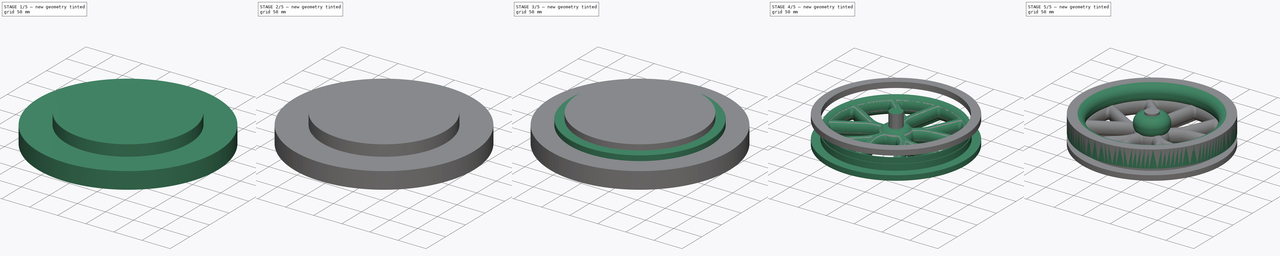
[diagram: build sequence overview — one tinted view per stage of 5, left to right]
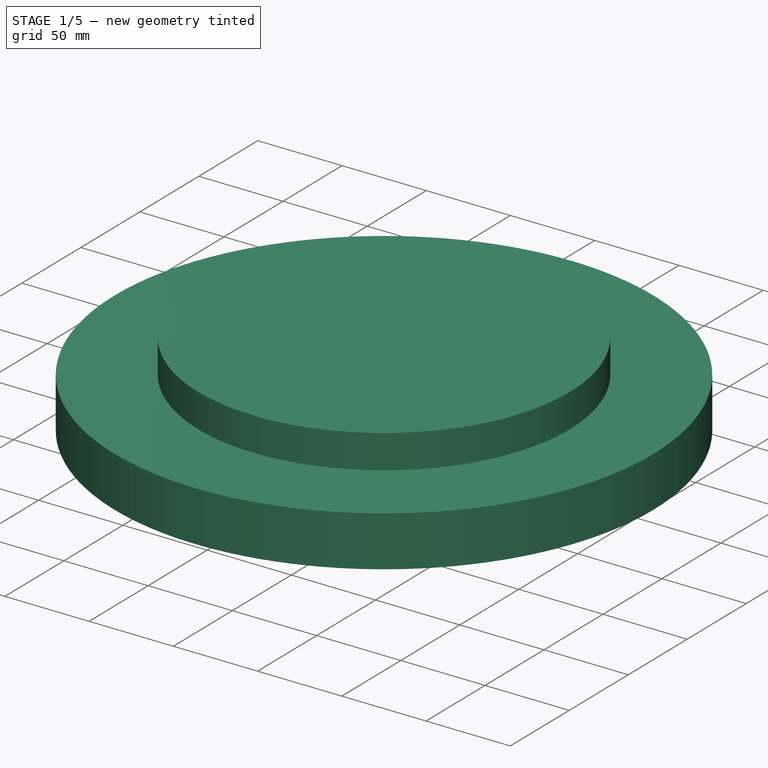
[diagram: stage 1 of 5 — iso view after this stage's code; geometry added in this stage tinted green]
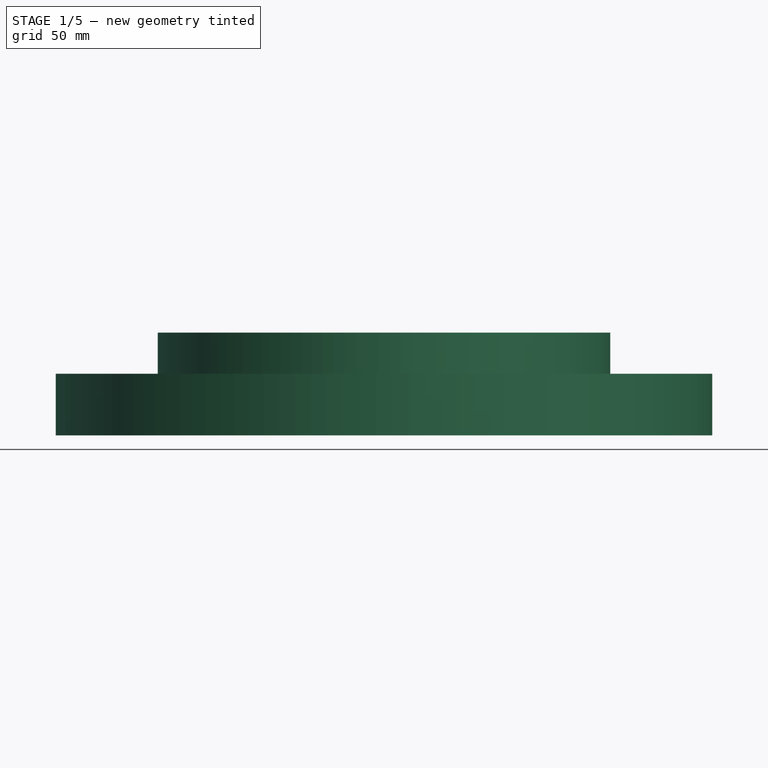
[diagram: stage 1 of 5 — front view after this stage's code; geometry added in this stage tinted green]
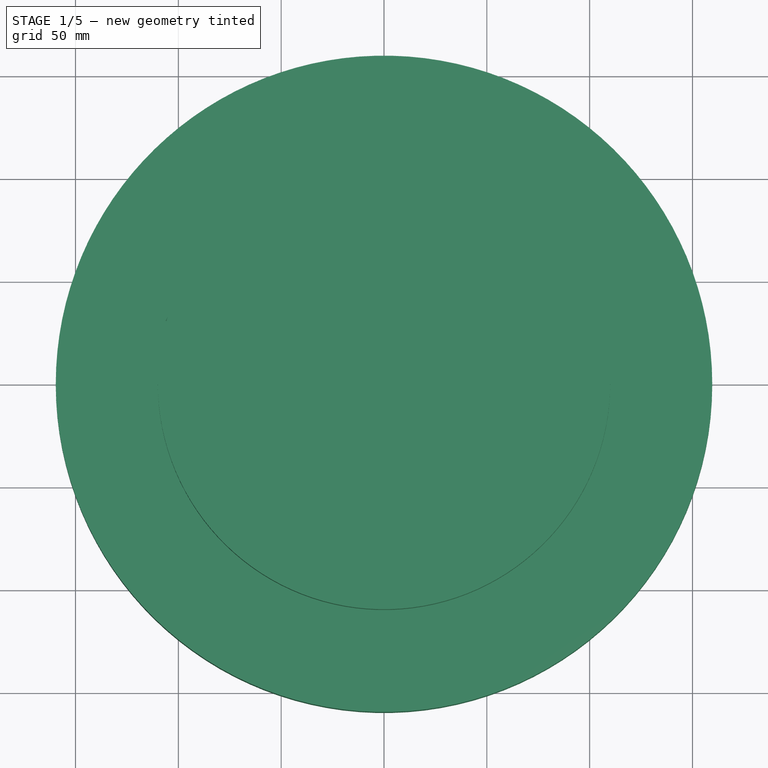
[diagram: stage 1 of 5 — top view after this stage's code; geometry added in this stage tinted green]
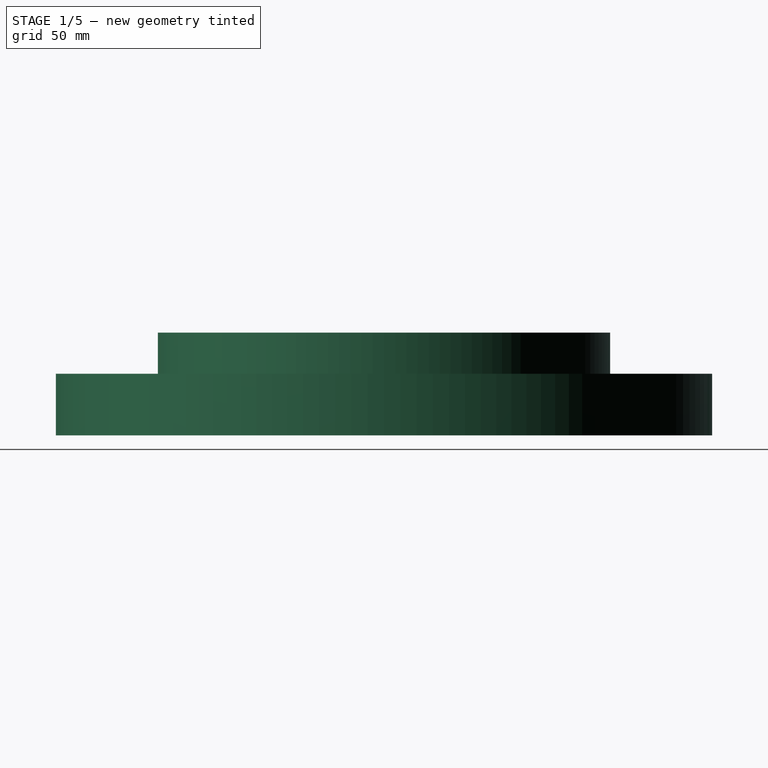
[diagram: stage 1 of 5 — right view after this stage's code; geometry added in this stage tinted green]
FCSTD DOCUMENT  (FreeCAD 0.20R27319 (Git))
Label: Vorderrad
License: All rights reserved
LicenseURL: http://en.wikipedia.org/wiki/All_rights_reserved
objects: Sketcher::SketchObject×9, PartDesign::Body×6, Part::FeaturePython×4, Part::Fillet×3, PartDesign::Pad×3, Part::Cylinder×2, PartDesign::AdditivePipe×2, PartDesign::PolarPattern×2, PartDesign::Revolution×2, Part::MultiFuse×2, Part::Cut×1, App::DocumentObjectGroup×1
note: 43 computed .brp shape members not serialized (recipe doc carries the construction recipe); baked Part::Feature solids carry a one-line shape summary decoded from their .brp

FEATURE [PartDesign::Body] Body002  label="Felge16"
  Group = -> [Sketch002,Revolution]
  Origin = -> Origin002
  Placement = pos=(0,0,15.5) rot=(0,0,1;0rad)
  Tip = -> Revolution
FEATURE [Sketcher::SketchObject] Sketch004  label="leg-profile-copy"
  AttachmentOffset = pos=(0.5,0,-10.1) rot=(0,0,1;0rad)
  FullyConstrained = true
  MapMode = 5
  Placement = pos=(-10.1,0.5,-2.4e-15) rot=(0.57735,0.57735,0.57735;2.0944rad)
  Support = -> [YZ_Plane003]
  expr: Constraints[15] = Sketch.Constraints[15]
  expr: Constraints[17] = Sketch.Constraints[17]
  expr: Constraints[5] = Sketch.Constraints[5]
  expr: Constraints[7] = Sketch.Constraints[7]
  expr: Constraints[8] = Sketch.Constraints[8]
  sketch-geometry (8):
    g0: ArcOfEllipse CenterX=0 CenterY=15.5 CenterZ=0 NormalX=0 NormalY=0 NormalZ=1 MajorRadius=11 MinorRadius=8 AngleXU=1.5708 StartAngle=3.45942 EndAngle=9.10695
    g1: LineSegment StartX=0 StartY=26.5 StartZ=0 EndX=0 EndY=4.5 EndZ=0
    g2: LineSegment StartX=-8 StartY=15.5 StartZ=0 EndX=8 EndY=15.5 EndZ=0
    g3: GeomPoint X=8e-16 Y=23.0498 Z=0
    g4: GeomPoint X=0 Y=7.95017 Z=0
    g5: LineSegment StartX=-2.5 StartY=5.0509 StartZ=0 EndX=-0.75 EndY=0 EndZ=0
    g6: LineSegment StartX=-0.75 StartY=0 StartZ=0 EndX=0.75 EndY=0 EndZ=0
    g7: LineSegment StartX=0.75 StartY=0 StartZ=0 EndX=2.5 EndY=5.0509 EndZ=0
  constraints (15):
    c: InternalAlignment(g1-g4 -> g0) x4
    c: PointOnObject(g0,g-2)
    c: DistanceY(g0) = 15.5
    c: PointOnObject(g1,g-2)
    c: DistanceY(g1,g1) = 22
    c: DistanceX(g2,g2) = 16
    c: PointOnObject(g5,g-1)
    c: Coincident(g5,g6)
    c: Coincident(g6,g7)
    c: Symmetric(g5,g7,g-2)
    c: Coincident(g0,g7)
    c: PointOnObject(g0,g5)
    c: DistanceX(g0,g0) = 5
    c: Symmetric(g5,g6,g-2)
    c: DistanceX(g5,g6) = 1.5
FEATURE [Sketcher::SketchObject] Sketch005  label="leg-path-right"
  FullyConstrained = true
  MapMode = 5
  Support = -> [XY_Plane003]
  expr: Constraints[10] = Sketch001.Constraints[13] + 0.1mm
  expr: Constraints[16] = Sketch001.Constraints[3]
  expr: Constraints[3] = Sketch001.Constraints[6]
  expr: Constraints[4] = Sketch001.Constraints[7]
  expr: Constraints[6] = Sketch001.Constraints[9]
  expr: Constraints[7] = -Sketch001.Constraints[10]
  expr: Constraints[8] = -Sketch001.Constraints[11]
  sketch-geometry (6):
    g0: LineSegment StartX=-50.5845 StartY=6.4514 StartZ=0 EndX=-102.979 EndY=36.7014 EndZ=0
    g1: GeomPoint X=-41.9476 Y=1.46484 Z=0
    g2: LineSegment StartX=0 StartY=0 StartZ=0 EndX=-93.8736 EndY=31.4444 EndZ=0
    g3: LineSegment StartX=-10.0938 StartY=0.352485 StartZ=0 EndX=-31.9805 EndY=1.11678 EndZ=0
    g4: LineSegment StartX=0 StartY=0 StartZ=0 EndX=-93.8736 EndY=-31.4444 EndZ=0
    g5: ArcOfCircle CenterX=-30.5845 CenterY=41.0924 CenterZ=0 NormalX=0 NormalY=0 NormalZ=1 AngleXU=0 Radius=40 StartAngle=4.18879 EndAngle=4.67748
  constraints (17):
    c: PointOnObject(g1,g0)
    c: PointOnObject(g2,g0)
    c: Coincident(g2,g-1)
    c: Distance(g2) = 99
    c: Distance(g0) = 60.5
    c: PointOnObject(g1,g3)
    c: Distance(g2,g3) = 32
    c: Angle(g3) = 3.10669
    c: Angle(g0,g3) = -2.6529
    c: PointOnObject(g2,g3)
    c: Distance(g3,g2) = 10.1
    c: Coincident(g4,g2)
    c: Symmetric(g4,g2,g-1)
    c: Angle(g4,g2) = -0.646436
    c: Tangent(g5,g3) = 1.5708
    c: Tangent(g5,g0) = 1.5708
    c: Radius(g5) = 40
FEATURE [PartDesign::AdditivePipe] AdditivePipe001
  AuxilleryCurvelinear = true
  AuxillerySpineTangent = false
  Binormal = (0,0,0)
  Mode = 0
  Placement = pos=(0,0,0) rot=(0.57735,0.57735,0.57735;2.0944rad)
  Profile = -> Sketch004
  Spine = -> Sketch005
  SpineTangent = false
  Transformation = 0
  Transition = 0
FEATURE [Sketcher::SketchObject] Sketch006
  AttachmentOffset = pos=(0,0,21) rot=(0,0,1;0rad)
  FullyConstrained = false
  MapMode = 5
  Placement = pos=(0,0,21) rot=(0,0,1;0rad)
  Support = -> [XY_Plane004]
  sketch-geometry (1):
    g0: Circle CenterX=0 CenterY=0 CenterZ=0 NormalX=0 NormalY=0 NormalZ=1 AngleXU=0 Radius=159.603
  constraints (1):
    c: Coincident(g0,g-1)
FEATURE [PartDesign::Pad] Pad
  Direction = (0,0,1)
  Length = 30
  Length2 = 10
  Profile = -> Sketch006
  ReferenceAxis = -> Sketch006 [N_Axis]
  Reversed = true
  Type = 0
FEATURE [Sketcher::SketchObject] Sketch007
  FullyConstrained = true
  MapMode = 5
  Placement = pos=(0,0,21) rot=(0,0,1;0rad)
  Support = -> [Pad]
  sketch-geometry (1):
    g0: Circle CenterX=0 CenterY=0 CenterZ=0 NormalX=0 NormalY=0 NormalZ=1 AngleXU=0 Radius=110
  constraints (2):
    c: Coincident(g0,g-1)
    c: Diameter(g0) = 220
FEATURE [PartDesign::Pad] Pad001
  BaseFeature = -> Pad
  Direction = (0,0,1)
  Length = 20
  Length2 = 10
  Profile = -> Sketch007
  ReferenceAxis = -> Sketch007 [N_Axis]
  Type = 0
FEATURE [PartDesign::Body] Body004  label="splitter"
  Group = -> [Sketch006,Pad,Sketch007,Pad001]
  Origin = -> Origin004
  Tip = -> Pad001
FEATURE [Sketcher::SketchObject] Sketch008
  FullyConstrained = true
  MapMode = 5
  Support = -> [XY_Plane005]
  sketch-geometry (18):
    g0: LineSegment StartX=9.56958 StartY=-5.525 StartZ=0 EndX=9.56958 EndY=5.525 EndZ=0
    g1: LineSegment StartX=9.56958 StartY=5.525 StartZ=0 EndX=0 EndY=11.05 EndZ=0
    g2: LineSegment StartX=0 StartY=11.05 StartZ=0 EndX=-9.56958 EndY=5.525 EndZ=0
    g3: LineSegment StartX=-9.56958 StartY=5.525 StartZ=0 EndX=-9.56958 EndY=-5.525 EndZ=0
    g4: LineSegment StartX=-9.56958 StartY=-5.525 StartZ=0 EndX=1.8e-15 EndY=-11.05 EndZ=0
    g5: LineSegment StartX=1.8e-15 StartY=-11.05 StartZ=0 EndX=9.56958 EndY=-5.525 EndZ=0
    g6: ArcOfCircle CenterX=0 CenterY=0 CenterZ=0 NormalX=0 NormalY=0 NormalZ=1 AngleXU=0 Radius=11.05 StartAngle=1.66585 EndAngle=2.52294
    g7: ArcOfCircle CenterX=0 CenterY=11.05 CenterZ=0 NormalX=0 NormalY=0 NormalZ=1 AngleXU=0 Radius=1.05 StartAngle=6.23566 EndAngle=9.47231
    g8: ArcOfCircle CenterX=-9.56958 CenterY=5.525 CenterZ=0 NormalX=0 NormalY=0 NormalZ=1 AngleXU=0 Radius=1.05 StartAngle=0.999668 EndAngle=4.23632
    g9: ArcOfCircle CenterX=9.56958 CenterY=5.525 CenterZ=0 NormalX=0 NormalY=0 NormalZ=1 AngleXU=0 Radius=1.05 StartAngle=5.18846 EndAngle=8.42511
    g10: ArcOfCircle CenterX=9.56958 CenterY=-5.525 CenterZ=0 NormalX=0 NormalY=0 NormalZ=1 AngleXU=0 Radius=1.05 StartAngle=4.14126 EndAngle=7.37791
    g11: ArcOfCircle CenterX=1.8e-15 CenterY=-11.05 CenterZ=0 NormalX=0 NormalY=0 NormalZ=1 AngleXU=0 Radius=1.05 StartAngle=3.09406 EndAngle=6.33071
    g12: ArcOfCircle CenterX=-9.56958 CenterY=-5.525 CenterZ=0 NormalX=0 NormalY=0 NormalZ=1 AngleXU=0 Radius=1.05 StartAngle=2.04687 EndAngle=5.28352
    g13: ArcOfCircle CenterX=0 CenterY=0 CenterZ=0 NormalX=0 NormalY=0 NormalZ=1 AngleXU=0 Radius=11.05 StartAngle=0.618657 EndAngle=1.47574
    g14: ArcOfCircle CenterX=0 CenterY=0 CenterZ=0 NormalX=0 NormalY=0 NormalZ=1 AngleXU=0 Radius=11.05 StartAngle=5.85464 EndAngle=6.71173
    g15: ArcOfCircle CenterX=0 CenterY=0 CenterZ=0 NormalX=0 NormalY=0 NormalZ=1 AngleXU=0 Radius=11.05 StartAngle=4.80745 EndAngle=5.66453
    g16: ArcOfCircle CenterX=0 CenterY=0 CenterZ=0 NormalX=0 NormalY=0 NormalZ=1 AngleXU=0 Radius=11.05 StartAngle=3.76025 EndAngle=4.61733
    g17: ArcOfCircle CenterX=0 CenterY=0 CenterZ=0 NormalX=0 NormalY=0 NormalZ=1 AngleXU=0 Radius=11.05 StartAngle=2.71305 EndAngle=3.57013
  constraints (50):
    c: Coincident(g0,g1)
    c: Coincident(g1,g2)
    c: Coincident(g2,g3)
    c: Coincident(g3,g4)
    c: Coincident(g4,g5)
    c: Coincident(g5,g0)
    c: Equal(g0, g1-g5) x5
    c: PointOnObject(g5,g6)
    c: PointOnObject(g1,g-2)
    c: DistanceY(g4,g1) = 22.1
    c: Coincident(g7,g1)
    c: Coincident(g8,g2)
    c: Coincident(g10,g0)
    c: Coincident(g11,g4)
    c: Coincident(g12,g3)
    c: Coincident(g9,g0)
    c: Coincident(g6,g-1)
    c: Equal(g7,g9)
    c: Equal(g9,g10)
    c: Equal(g10,g11)
    c: Equal(g11,g12)
    c: Equal(g12,g8)
    c: Diameter(g9) = 2.1
    c: Coincident(g6,g7)
    c: Coincident(g13,g7)
    c: Equal(g6,g13)
    c: Coincident(g14,g9)
    c: Coincident(g6,g13)
    c: Coincident(g9,g13)
    c: Equal(g6,g14)
    c: Coincident(g15,g10)
    c: Coincident(g6,g14)
    c: Coincident(g10,g14)
    c: Equal(g6,g15)
    c: Coincident(g6,g15)
    c: Coincident(g11,g16)
    c: Coincident(g15,g11)
    c: Equal(g6,g16)
    c: Coincident(g6,g16)
    c: Coincident(g12,g17)
    c: Coincident(g12,g16)
    c: Equal(g6,g17)
    c: Coincident(g17,g8)
    c: Coincident(g6,g17)
    c: Coincident(g6,g8)
    c: Parallel(g3,g0)
    c: PointOnObject(g7,g13)
    c: PointOnObject(g9,g14)
    c: PointOnObject(g11,g16)
    c: PointOnObject(g12,g17)
FEATURE [PartDesign::Pad] Pad002
  Direction = (0,0,1)
  Length = 34
  Length2 = 10
  Profile = -> Sketch008
  ReferenceAxis = -> Sketch008 [N_Axis]
  Type = 0
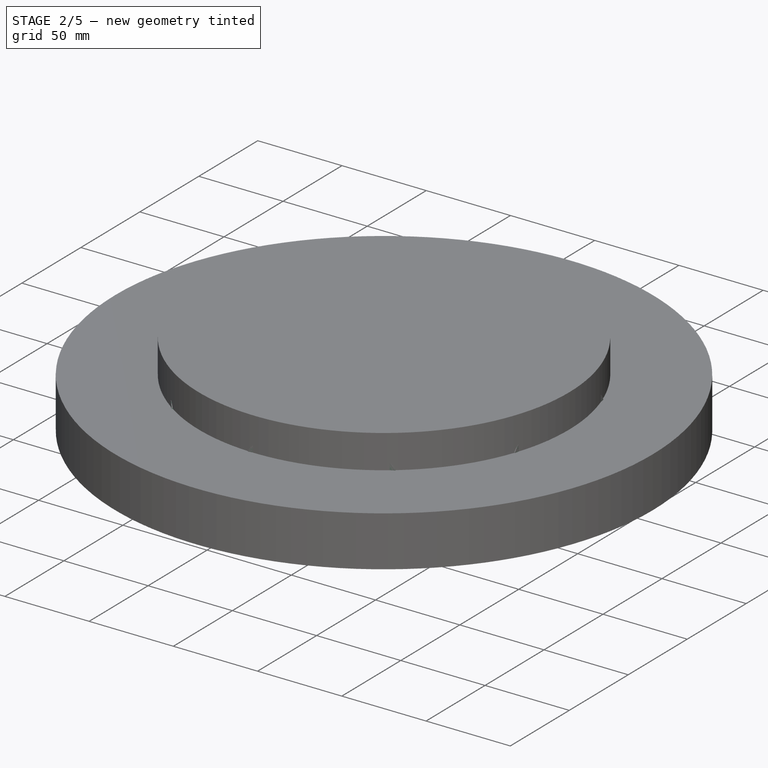
[diagram: stage 2 of 5 — iso view after this stage's code; geometry added in this stage tinted green]
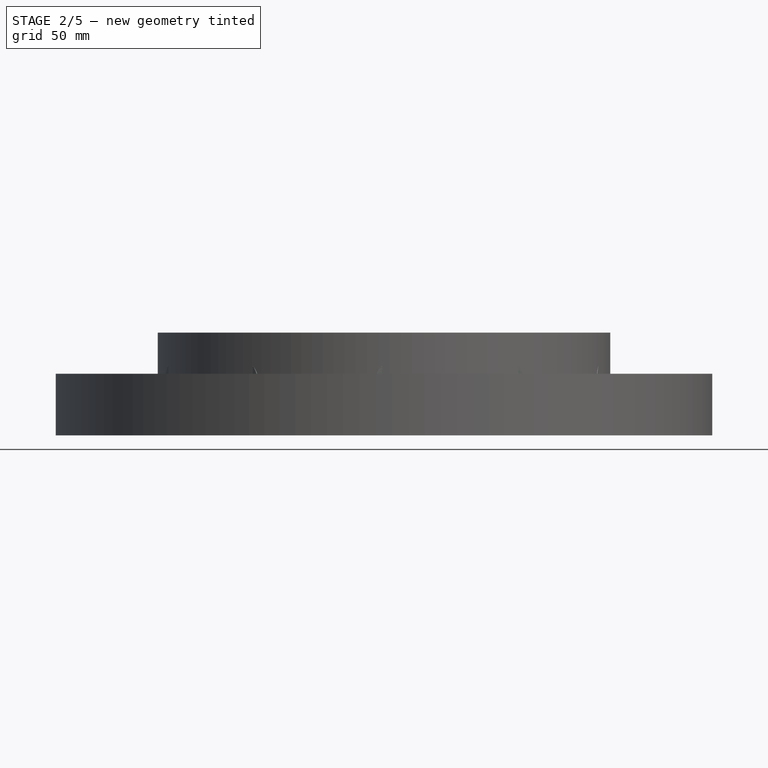
[diagram: stage 2 of 5 — front view after this stage's code; geometry added in this stage tinted green]
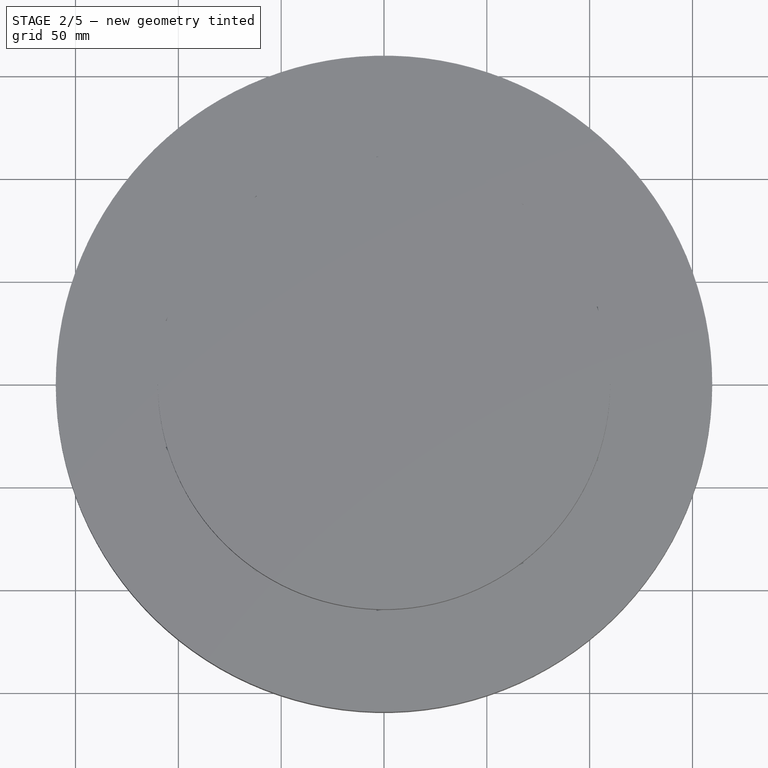
[diagram: stage 2 of 5 — top view after this stage's code; geometry added in this stage tinted green]
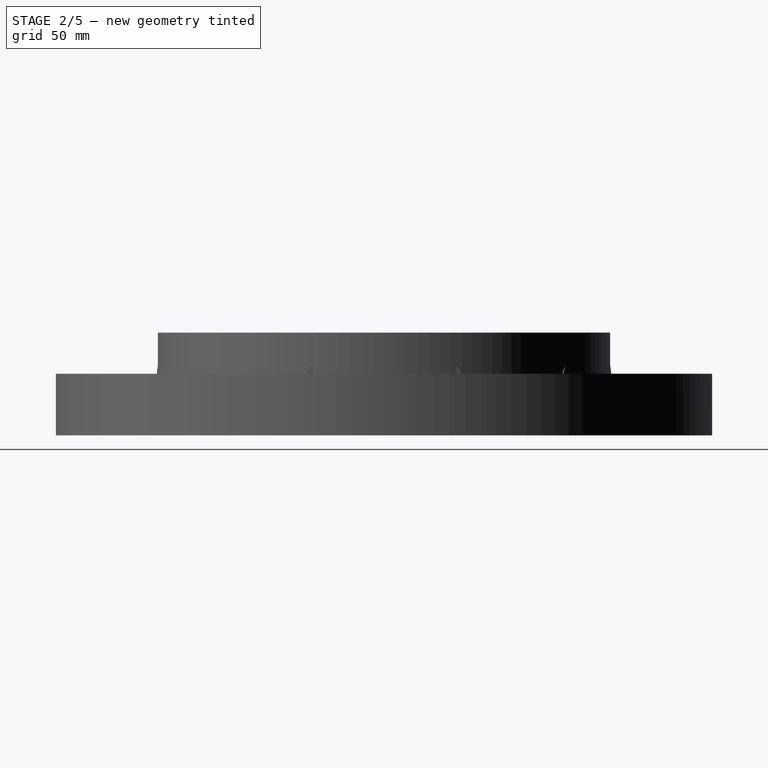
[diagram: stage 2 of 5 — right view after this stage's code; geometry added in this stage tinted green]
FEATURE [Sketcher::SketchObject] Sketch  label="leg-profile"
  AttachmentOffset = pos=(-0.5,0,-10) rot=(0,0,1;0rad)
  FullyConstrained = true
  MapMode = 5
  Placement = pos=(-10,-0.5,-2.1e-15) rot=(0.57735,0.57735,0.57735;2.0944rad)
  Support = -> [YZ_Plane]
  sketch-geometry (8):
    g0: ArcOfEllipse CenterX=0 CenterY=15.5 CenterZ=0 NormalX=0 NormalY=0 NormalZ=1 MajorRadius=11 MinorRadius=8 AngleXU=1.5708 StartAngle=3.45942 EndAngle=9.10695
    g1: LineSegment StartX=0 StartY=26.5 StartZ=0 EndX=0 EndY=4.5 EndZ=0
    g2: LineSegment StartX=-8 StartY=15.5 StartZ=0 EndX=8 EndY=15.5 EndZ=0
    g3: GeomPoint X=8e-16 Y=23.0498 Z=0
    g4: GeomPoint X=0 Y=7.95017 Z=0
    g5: LineSegment StartX=-2.5 StartY=5.0509 StartZ=0 EndX=-0.75 EndY=0 EndZ=0
    g6: LineSegment StartX=-0.75 StartY=0 StartZ=0 EndX=0.75 EndY=0 EndZ=0
    g7: LineSegment StartX=0.75 StartY=0 StartZ=0 EndX=2.5 EndY=5.0509 EndZ=0
  constraints (15):
    c: InternalAlignment(g1-g4 -> g0) x4
    c: PointOnObject(g0,g-2)
    c: DistanceY(g0) = 15.5
    c: PointOnObject(g1,g-2)
    c: DistanceY(g1,g1) = 22
    c: DistanceX(g2,g2) = 16
    c: PointOnObject(g5,g-1)
    c: Coincident(g5,g6)
    c: Coincident(g6,g7)
    c: Symmetric(g5,g7,g-2)
    c: Coincident(g0,g7)
    c: PointOnObject(g0,g5)
    c: DistanceX(g0,g0) = 5
    c: Symmetric(g5,g6,g-2)
    c: DistanceX(g5,g6) = 1.5
FEATURE [Sketcher::SketchObject] Sketch001  label="leg-path-left"
  FullyConstrained = true
  MapMode = 5
  Support = -> [XY_Plane]
  sketch-geometry (6):
    g0: LineSegment StartX=-50.5845 StartY=-6.4514 StartZ=0 EndX=-102.979 EndY=-36.7014 EndZ=0
    g1: ArcOfCircle CenterX=-30.5845 CenterY=-41.0924 CenterZ=0 NormalX=0 NormalY=0 NormalZ=1 AngleXU=0 Radius=40 StartAngle=1.6057 EndAngle=2.0944
    g2: GeomPoint X=-41.9476 Y=-1.46484 Z=0
    g3: LineSegment StartX=0 StartY=0 StartZ=0 EndX=-93.8736 EndY=-31.4444 EndZ=0
    g4: LineSegment StartX=-9.99391 StartY=-0.348995 StartZ=0 EndX=-31.9805 EndY=-1.11678 EndZ=0
    g5: LineSegment StartX=0 StartY=0 StartZ=0 EndX=-93.8736 EndY=31.4444 EndZ=0
  constraints (17):
    c: PointOnObject(g2,g0)
    c: Tangent(g4,g1) = -1.5708
    c: Tangent(g0,g1) = -1.5708
    c: Radius(g1) = 40
    c: PointOnObject(g3,g0)
    c: Coincident(g3,g-1)
    c: Distance(g3) = 99
    c: Distance(g0) = 60.5
    c: PointOnObject(g2,g4)
    c: Distance(g3,g4) = 32
    c: Angle(g4) = -3.10669
    c: Angle(g0,g4) = 2.6529
    c: PointOnObject(g3,g4)
    c: Distance(g4,g3) = 10
    c: Coincident(g5,g3)
    c: Symmetric(g5,g3,g-1)
    c: Angle(g5,g3) = 0.646436
FEATURE [PartDesign::AdditivePipe] AdditivePipe
  AuxilleryCurvelinear = true
  AuxillerySpineTangent = false
  Binormal = (0,0,0)
  Mode = 0
  Placement = pos=(0,0,0) rot=(0.57735,0.57735,0.57735;2.0944rad)
  Profile = -> Sketch
  Spine = -> Sketch001
  SpineTangent = false
  Transformation = 0
  Transition = 1
FEATURE [PartDesign::PolarPattern] PolarPattern
  Angle = 360
  Axis = -> Z_Axis
  BaseFeature = -> AdditivePipe
  Occurrences = 5
  Originals = -> [AdditivePipe]
  Overlap = 1
  Placement = pos=(0,0,0) rot=(0.57735,0.57735,0.57735;2.0944rad)
  Refine = true
  Reversed = true
FEATURE [PartDesign::PolarPattern] PolarPattern001
  Angle = 360
  Axis = -> Z_Axis003
  BaseFeature = -> AdditivePipe001
  Occurrences = 5
  Originals = -> [AdditivePipe001]
  Overlap = 1
  Placement = pos=(0,0,0) rot=(0.57735,0.57735,0.57735;2.0944rad)
  Refine = true
FEATURE [PartDesign::Body] Body003  label="spokes-right"
  Group = -> [Sketch004,Sketch005,AdditivePipe001,PolarPattern001]
  Origin = -> Origin003
  Tip = -> PolarPattern001
FEATURE [Part::MultiFuse] Fusion  label="Speichen"
  Shapes = -> [Body003,Body]
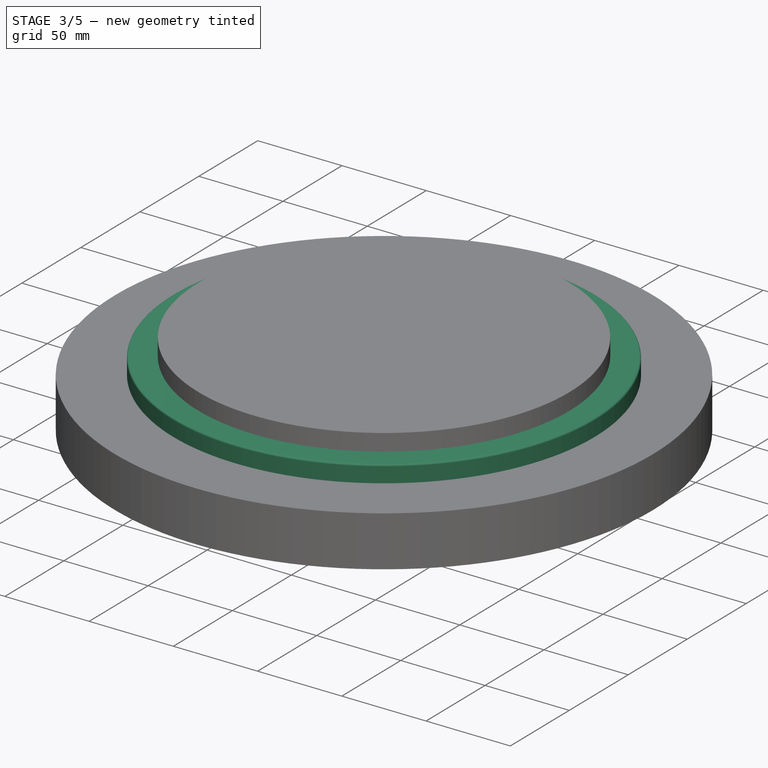
[diagram: stage 3 of 5 — iso view after this stage's code; geometry added in this stage tinted green]
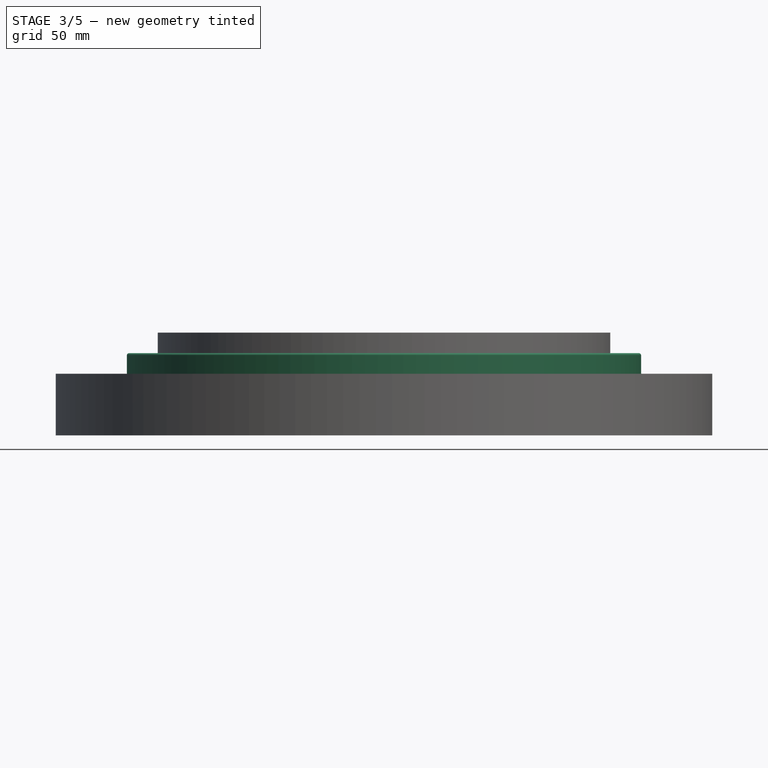
[diagram: stage 3 of 5 — front view after this stage's code; geometry added in this stage tinted green]
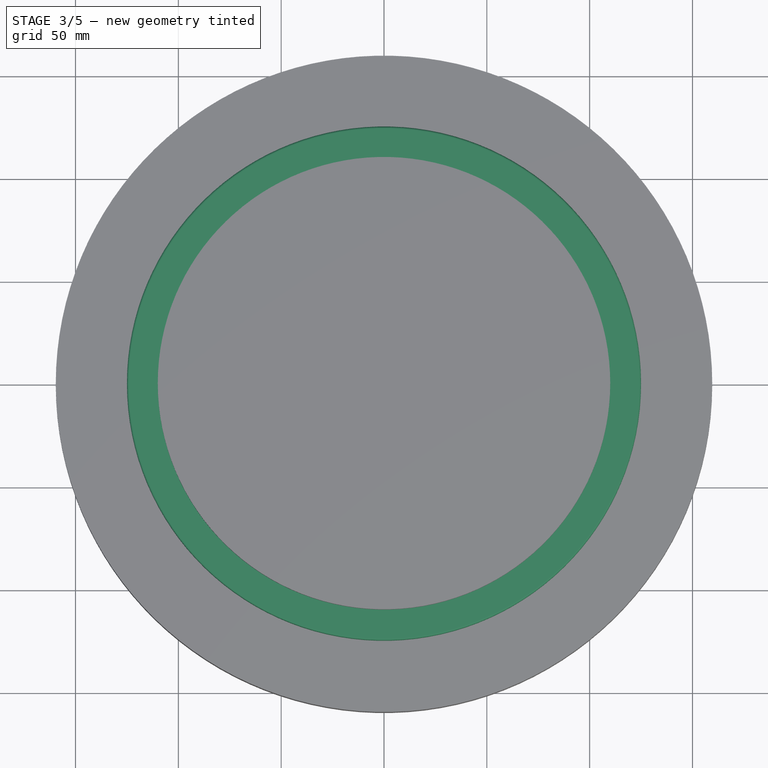
[diagram: stage 3 of 5 — top view after this stage's code; geometry added in this stage tinted green]
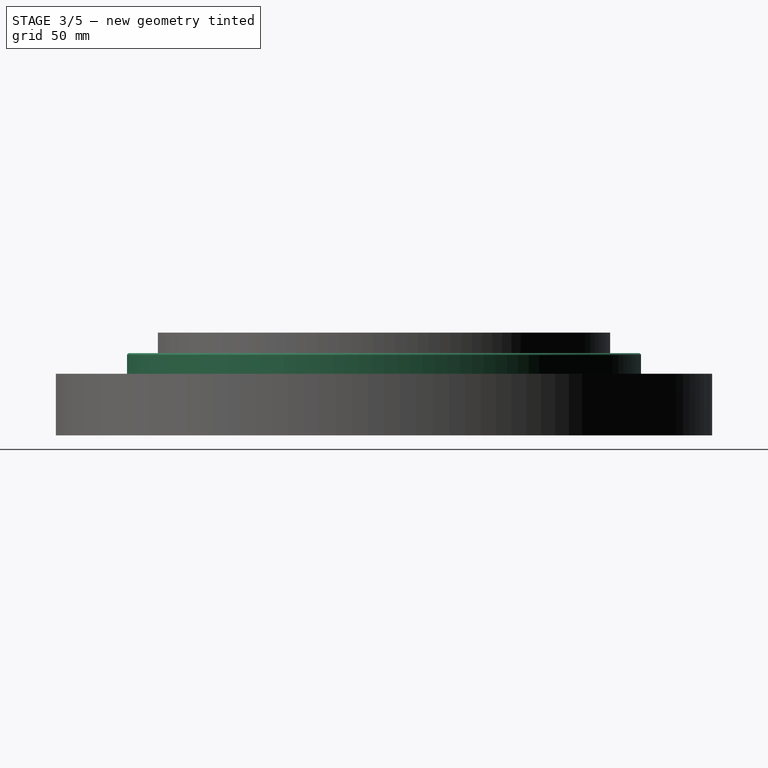
[diagram: stage 3 of 5 — right view after this stage's code; geometry added in this stage tinted green]
FEATURE [Sketcher::SketchObject] Sketch002  label="rim-profile"
  FullyConstrained = true
  MapMode = 5
  Placement = pos=(0,0,0) rot=(1,0,0;1.5708rad)
  Support = -> [XZ_Plane004]
  sketch-geometry (9):
    g0: LineSegment StartX=-111 StartY=5.5 StartZ=0 EndX=-125 EndY=5.5 EndZ=0
    g1: LineSegment StartX=-125 StartY=5.5 StartZ=0 EndX=-125 EndY=15.5 EndZ=0
    g2: LineSegment StartX=-125 StartY=15.5 StartZ=0 EndX=-109 EndY=15.5 EndZ=0
    g3: LineSegment StartX=-109 StartY=-15.5 StartZ=0 EndX=-125 EndY=-15.5 EndZ=0
    g4: LineSegment StartX=-125 StartY=-15.5 StartZ=0 EndX=-125 EndY=-5.5 EndZ=0
    g5: LineSegment StartX=-125 StartY=-5.5 StartZ=0 EndX=-111 EndY=-5.5 EndZ=0
    g6: LineSegment StartX=-111 StartY=-5.5 StartZ=0 EndX=-111 EndY=5.5 EndZ=0
    g7: ArcOfCircle CenterX=-114 CenterY=-2.5e-15 CenterZ=0 NormalX=0 NormalY=0 NormalZ=1 AngleXU=0 Radius=16.2865 StartAngle=5.02443 EndAngle=7.54194
    g8: GeomPoint X=125 Y=15.5 Z=0
  constraints (24):
    c: Horizontal(g0)
    c: Coincident(g0,g1)
    c: Vertical(g1)
    c: Coincident(g1,g2)
    c: Horizontal(g2)
    c: Horizontal(g3)
    c: Coincident(g3,g4)
    c: Vertical(g4)
    c: Coincident(g4,g5)
    c: Horizontal(g5)
    c: Coincident(g5,g6)
    c: Coincident(g6,g0)
    c: Symmetric(g2,g3,g-1)
    c: Symmetric(g0,g5,g-1)
    c: PointOnObject(g4,g1)
    c: Coincident(g7,g2)
    c: Coincident(g7,g3)
    c: DistanceX(g7,g3) = 5
    c: DistanceY(g3,g1) = 31
    c: DistanceY(g4,g0) = 11
    c: DistanceX(g4,g5) = 14
    c: DistanceX(g2,g2) = 16
    c: Symmetric(g8,g1,g-2)
    c: DistanceX(g1,g8) = 250
FEATURE [Sketcher::SketchObject] Sketch003  label="hub-profile"
  ExternalGeometry = -> [Sketch002]
  FullyConstrained = false
  MapMode = 5
  Placement = pos=(0,0,0) rot=(1,0,0;1.5708rad)
  Support = -> [XZ_Plane003]
  sketch-geometry (9):
    g0: LineSegment StartX=-11.2 StartY=-15.5 StartZ=0 EndX=-17.2 EndY=-15.5 EndZ=0
    g1: LineSegment StartX=-17.2 StartY=15.5 StartZ=0 EndX=-11.2 EndY=15.5 EndZ=0
    g2: ArcOfCircle CenterX=-10 CenterY=0 CenterZ=0 NormalX=0 NormalY=0 NormalZ=1 AngleXU=0 Radius=17.0906 StartAngle=2.00566 EndAngle=4.27753
    g3: GeomPoint X=11.2 Y=-15.5 Z=0
    g4: GeomPoint X=9.9 Y=-8.5 Z=0
    g5: LineSegment StartX=-11.2 StartY=-15.5 StartZ=0 EndX=0 EndY=-15.5 EndZ=0
    g6: LineSegment StartX=0 StartY=-15.5 StartZ=0 EndX=0 EndY=15.5 EndZ=0
    g7: LineSegment StartX=0 StartY=15.5 StartZ=0 EndX=-11.2 EndY=15.5 EndZ=0
    g8: GeomPoint X=-27.0906 Y=0 Z=0
  constraints (23):
    c: Horizontal(g0)
    c: Horizontal(g1)
    c: Coincident(g2,g1)
    c: Coincident(g2,g0)
    c: Equal(g1,g0)
    c: Symmetric(g0,g1,g-1)
    c: Symmetric(g3,g0,g-2)
    c: DistanceX(g0,g3) = 22.4
    c: DistanceX(g1,g1) = 6
    c: PointOnObject(g-3,g0)
    c: DistanceX(g2) = -10
    c: Coincident(g0,g5)
    c: PointOnObject(g5,g-2)
    c: Coincident(g5,g6)
    c: PointOnObject(g6,g-2)
    c: Coincident(g6,g7)
    c: Coincident(g7,g1)
    c: Horizontal(g7)
    c: Horizontal(g5)
    c: PointOnObject(g8,g2)
    c: PointOnObject(g8,g-1)
    c: DistanceX(g8) = -27.0906
    c: DistanceY(g6,g6) = 31
FEATURE [PartDesign::Revolution] Revolution001
  Angle = 360
  Axis = (0,-2e-16,1)
  Base = (0,0,0)
  Placement = pos=(0,0,0) rot=(1,0,0;1.5708rad)
  Profile = -> Sketch003
  ReferenceAxis = -> Sketch003 [V_Axis]
FEATURE [PartDesign::Body] Body001  label="Nabe"
  Group = -> [Revolution001]
  Origin = -> Origin001
  Placement = pos=(0,0,15.5) rot=(0,0,1;0rad)
  Tip = -> Revolution001
FEATURE [PartDesign::Revolution] Revolution
  Angle = 360
  Axis = (0,2e-16,1)
  Base = (0,0,0)
  Placement = pos=(0,0,0) rot=(1,0,0;1.5708rad)
  Profile = -> Sketch002
  ReferenceAxis = -> Sketch002 [V_Axis]
FEATURE [Part::MultiFuse] Fusion001
  Shapes = -> [Fusion,Body002,Body001]
FEATURE [PartDesign::Body] Body005  label="center-bore"
  Group = -> [Sketch008,Pad002]
  Origin = -> Origin005
  Placement = pos=(0,0,-2) rot=(0,0,1;0rad)
  Tip = -> Pad002
FEATURE [Part::Cut] Cut
  Base = -> Fusion001
  Tool = -> Body005
FEATURE [Part::Fillet] Fillet002
  Base = -> Cut
  Edges = 24 edges: [Edge1 r=1,Edge43 r=1,Edge48 r=4,Edge51 r=4,Edge54 r=4,Edge57 r=4,Edge60 r=4,Edge63 r=4,Edge66 r=4,Edge69 r=4,Edge72 r=4,Edge75 r=4,Edge88 r=1,Edge246 r=1,Edge376 r=4,Edge377 r=4,Edge379 r=4,Edge380 r=4,Edge382 r=4,Edge383 r=4,Edge385 r=4,Edge386 r=4,Edge388 r=4,Edge389 r=4]
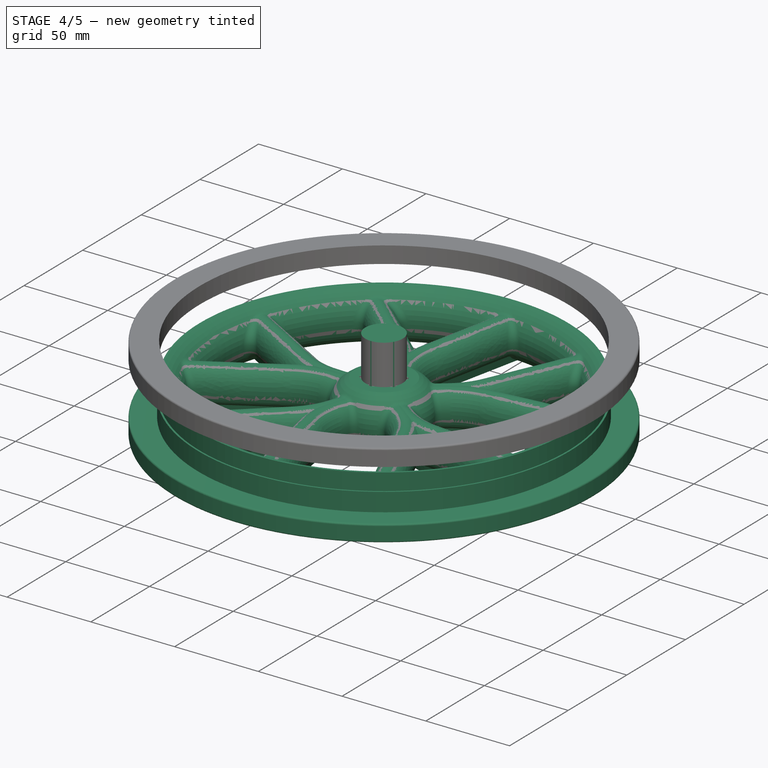
[diagram: stage 4 of 5 — iso view after this stage's code; geometry added in this stage tinted green]
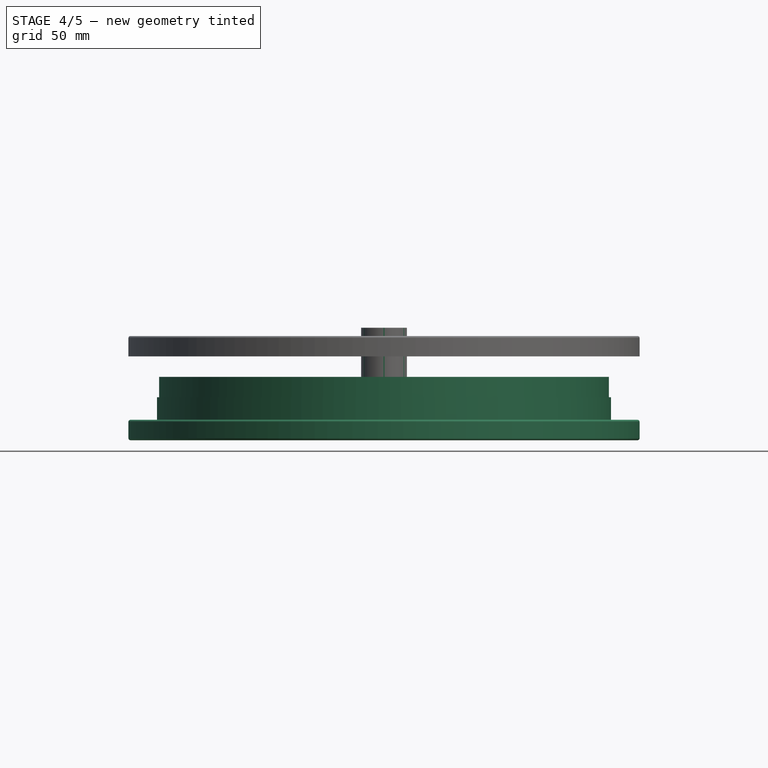
[diagram: stage 4 of 5 — front view after this stage's code; geometry added in this stage tinted green]
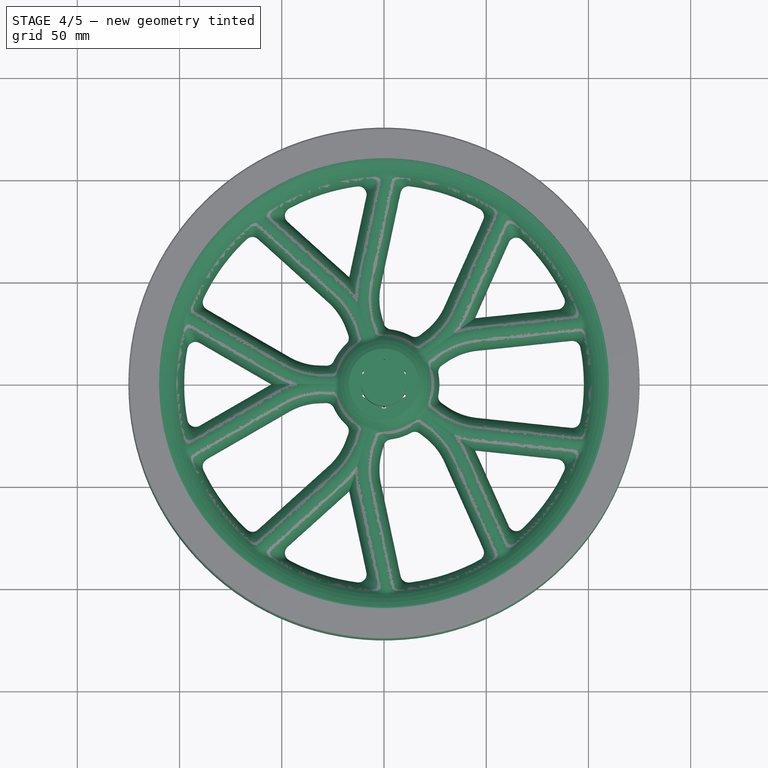
[diagram: stage 4 of 5 — top view after this stage's code; geometry added in this stage tinted green]
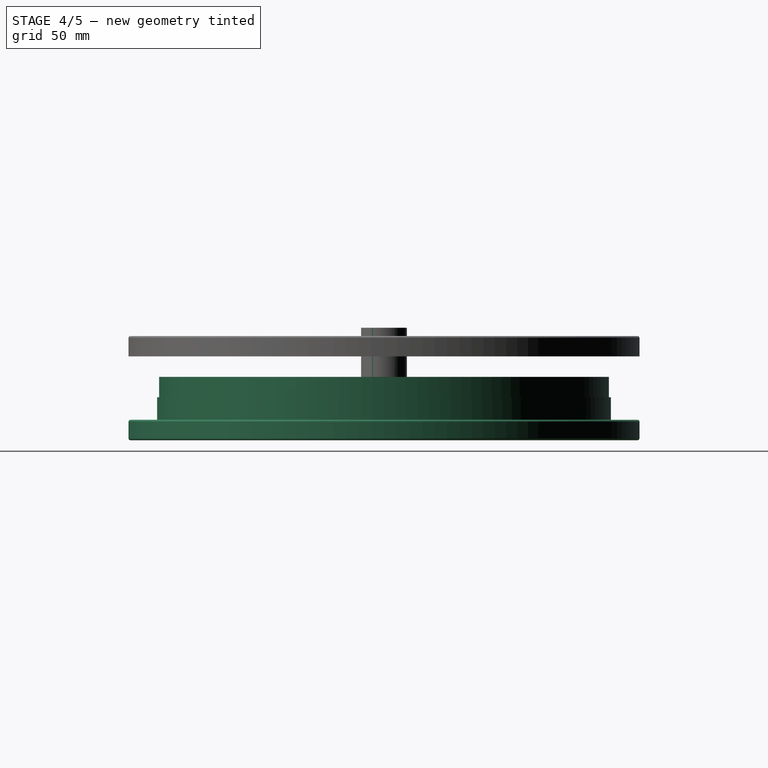
[diagram: stage 4 of 5 — right view after this stage's code; geometry added in this stage tinted green]
FEATURE [Part::Cylinder] Cylinder001
  Angle = 360
  AttacherType = Attacher::AttachEngine3D
  FirstAngle = 0
  Height = 40
  Placement = pos=(0,0,-5) rot=(0,0,1;0rad)
  Radius = 11.2
  SecondAngle = 0
FEATURE [Part::FeaturePython] Slice  # WARN: FeaturePython — macro-defined, semantics opaque (R4)
  Base = -> Fillet002
  Mode = 1
  Tolerance = 0
  Tools = -> [Body004]
FEATURE [Part::FeaturePython] Slice_child0  label="250mm-wheel-one-rim"  # WARN: FeaturePython — macro-defined, semantics opaque (R4)
  Base = -> Slice
  FilterType = 1
  Invert = false
  OverrideMaxVal = 0
  Placement = pos=(0,0,-20) rot=(0,0,1;0rad)
  WindowFrom = 80
  WindowTo = 100
  items = 0
FEATURE [Part::FeaturePython] Slice_child1  label="250mm-second-rim"  # WARN: FeaturePython — macro-defined, semantics opaque (R4)
  Base = -> Slice
  FilterType = 1
  Invert = false
  OverrideMaxVal = 0
  WindowFrom = 80
  WindowTo = 100
  items = 1
FEATURE [App::DocumentObjectGroup] GrExplode_Slice  label="Exploded Slice"
  Group = -> [Slice_child0,Slice_child1]
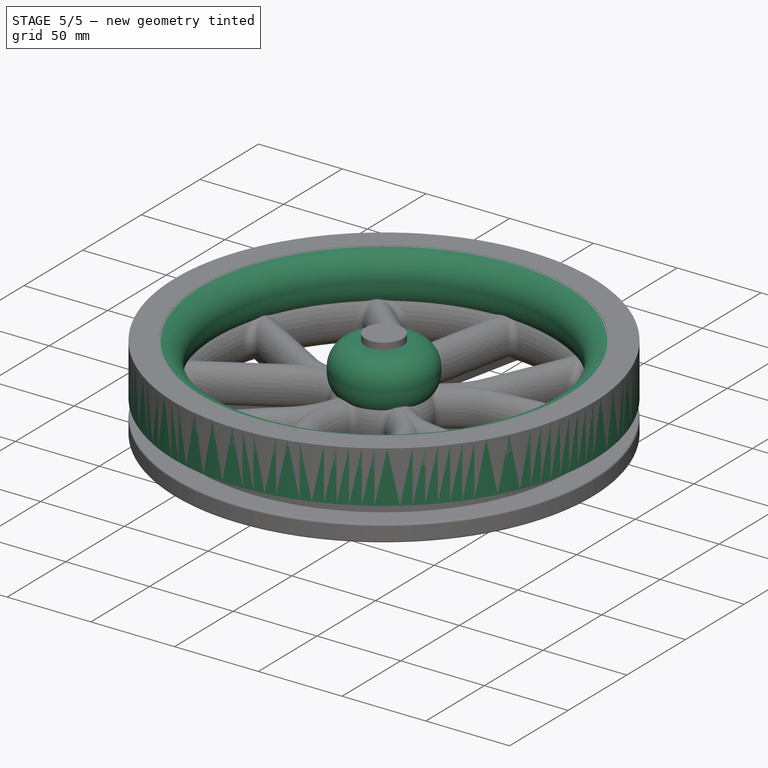
[diagram: stage 5 of 5 — iso view after this stage's code; geometry added in this stage tinted green]
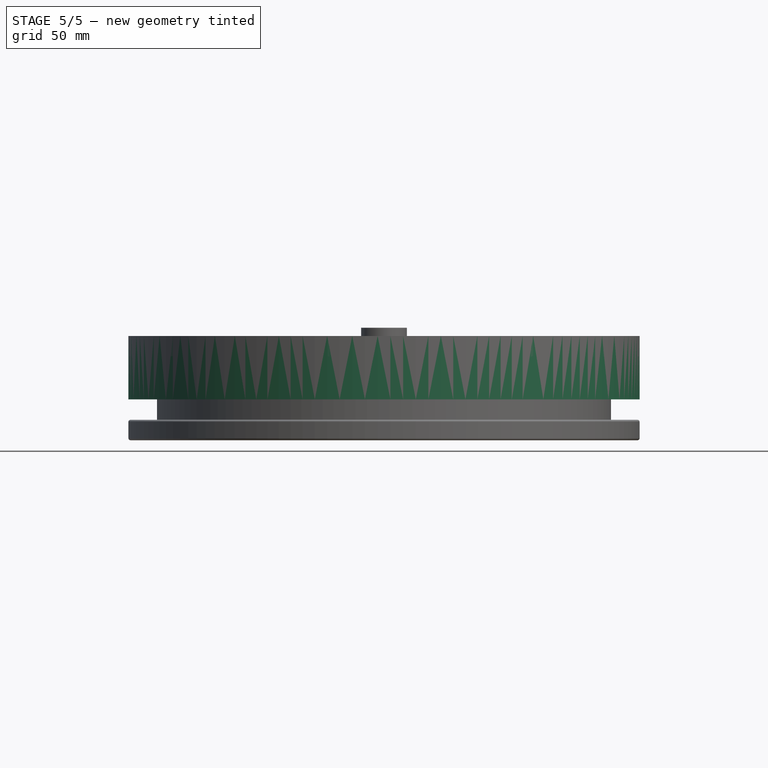
[diagram: stage 5 of 5 — front view after this stage's code; geometry added in this stage tinted green]
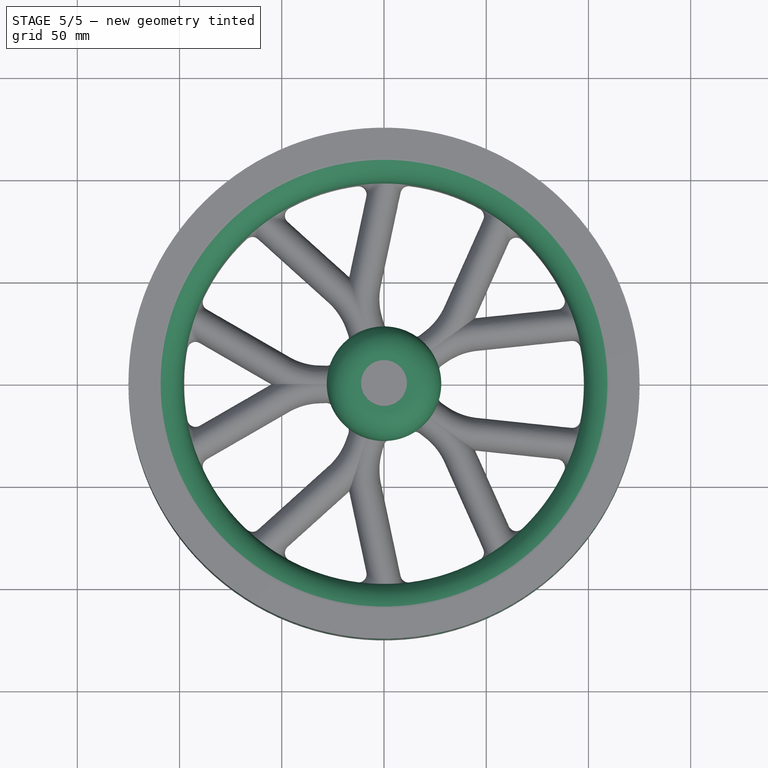
[diagram: stage 5 of 5 — top view after this stage's code; geometry added in this stage tinted green]
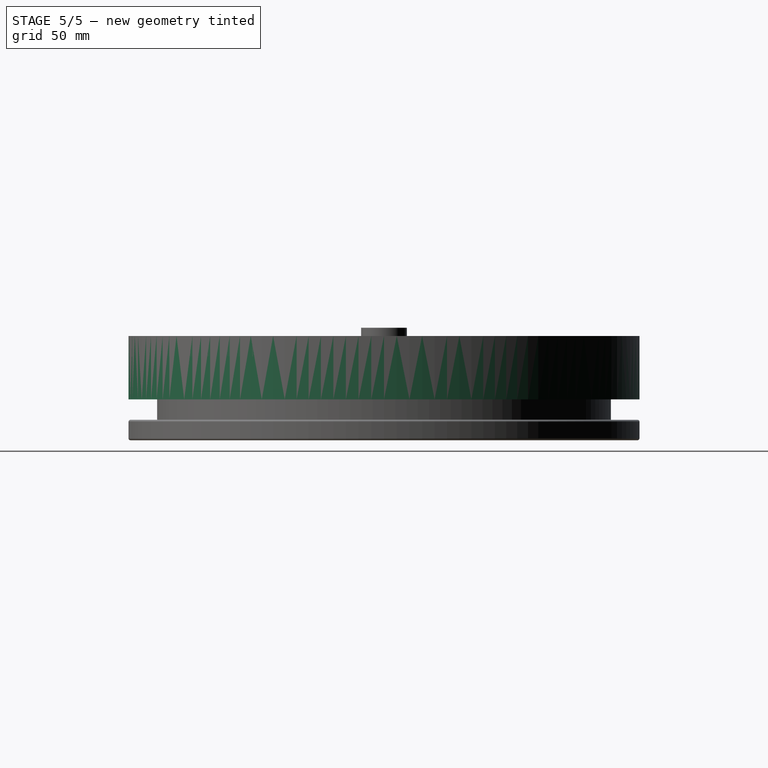
[diagram: stage 5 of 5 — right view after this stage's code; geometry added in this stage tinted green]
FEATURE [Part::Cylinder] Cylinder
  Angle = 360
  AttacherType = Attacher::AttachEngine3D
  FirstAngle = 0
  Height = 31
  Radius = 28
  SecondAngle = 0
FEATURE [Part::Fillet] Fillet  label="dummy_Hub"
  Base = -> Cylinder
  Edges = 2 edges r=14: [Edge2,Edge3]
FEATURE [PartDesign::Body] Body  label="spokes-left"
  Group = -> [Sketch,Sketch001,AdditivePipe,PolarPattern]
  Origin = -> Origin
  Tip = -> PolarPattern
FEATURE [Part::FeaturePython] Tube  # WARN: FeaturePython — macro-defined, semantics opaque (R4)
  AttacherType = Attacher::AttachEngine3D
  Height = 31
  InnerRadius = 98
  OuterRadius = 125
FEATURE [Part::Fillet] Fillet001  label="dummy_rim"
  Base = -> Tube
  Edges = 2 edges r=14: [Edge4,Edge5]
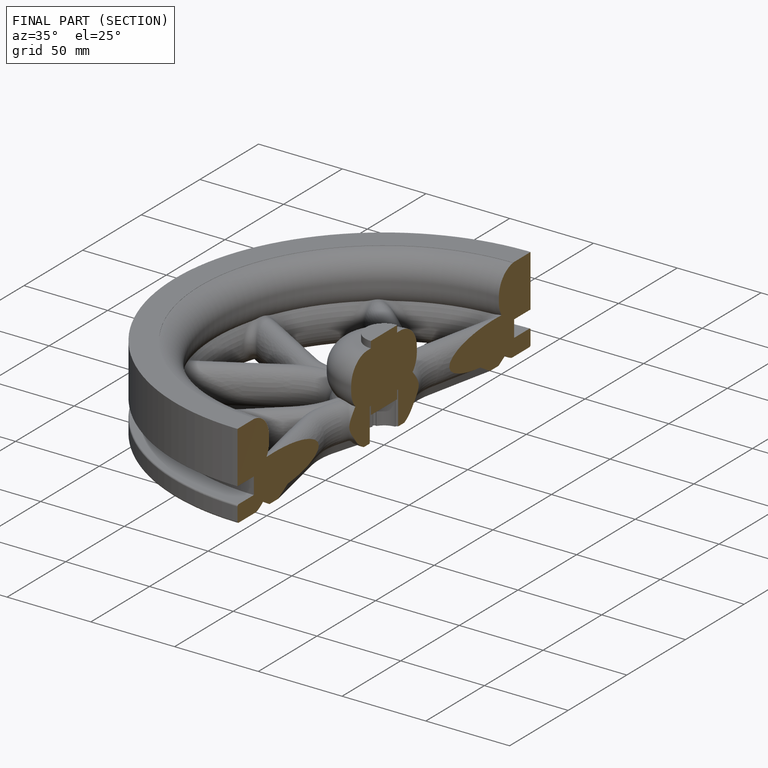
[diagram: finished part — half-section view (interior)]
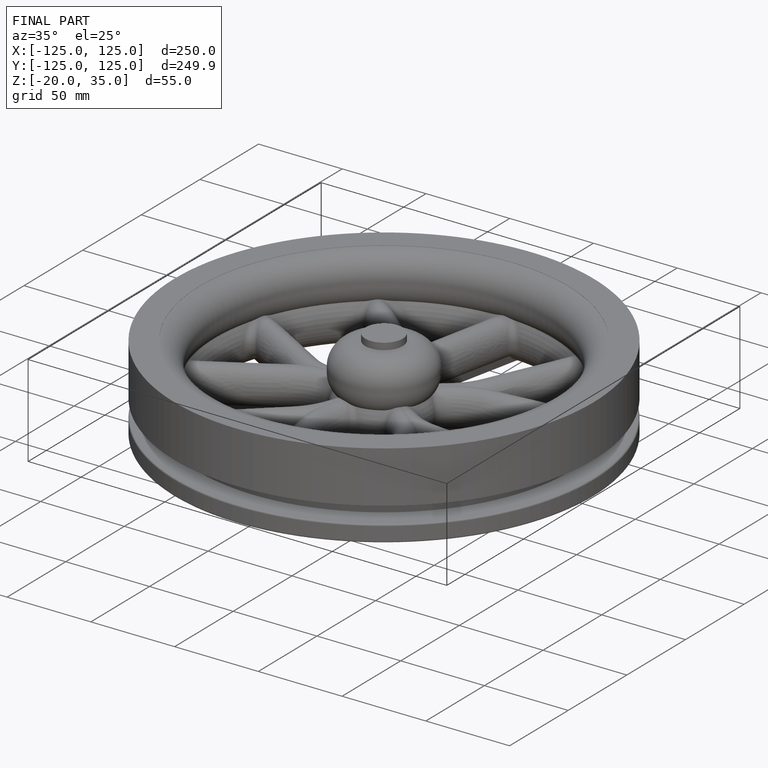
[diagram: finished part — iso view with bounding-box wireframe]
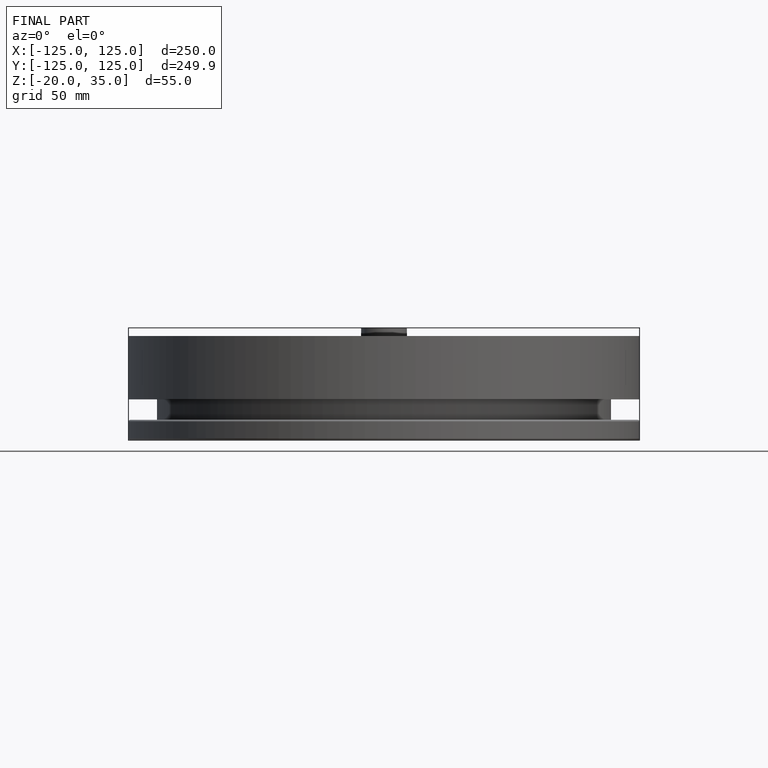
[diagram: finished part — front view with bounding-box wireframe]
